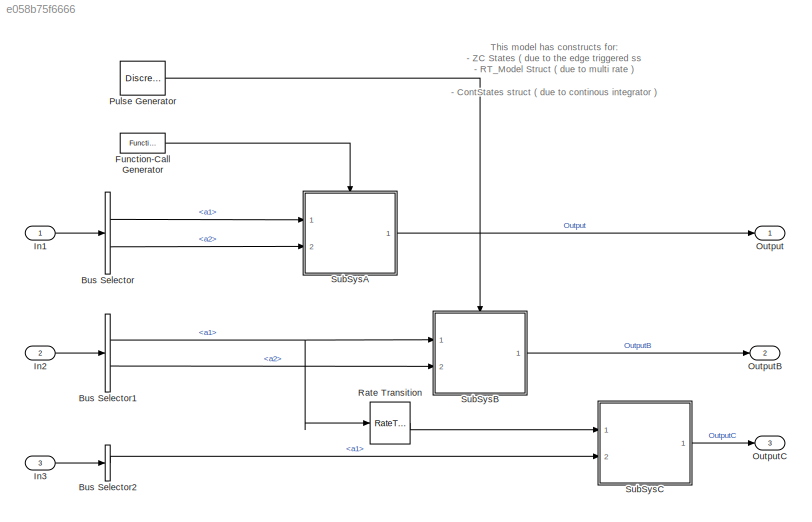
MODEL slx_e058b75f6666
KIND model
CONFIG AbsTol = auto
CONFIG EnableMultiTasking = off
CONFIG FixedStep = .001
CONFIG MaxStep = auto
CONFIG MinStep = auto
CONFIG PreLoadFcn = load 'test_data.mat'
CONFIG RelTol = 1e-3
CONFIG SampleTimeConstraint = Unconstrained
CONFIG Solver = ode4
CONFIG SolverName = ode4
CONFIG StartTime = 0.0
CONFIG StopTime = 10.0
BLOCK [BusSelector] Bus Selector
  OutputAsBus = off
  OutputSignals = a1,a2
  Ports = [1, 2]
BLOCK [BusSelector] Bus Selector1
  OutputAsBus = off
  OutputSignals = a1,a2
  Ports = [1, 2]
BLOCK [BusSelector] Bus Selector2
  OutputAsBus = off
  OutputSignals = a1
  Ports = [1, 1]
BLOCK [Reference] Function-Call Generator  REF=simulink/Ports &
Subsystems/Function-Call
Generator
  Ports = [0, 1]
  SourceBlock = simulink/Ports &\nSubsystems/Function-Call\nGenerator
  SourceProductBaseCode = SL
  SourceProductName = Simulink
  SourceType = Function-Call Generator
BLOCK [Inport] In1
  BusOutputAsStruct = on
  IconDisplay = Port number
  OutDataTypeStr = Bus: InBus_msg
BLOCK [Inport] In2
  BusOutputAsStruct = on
  IconDisplay = Port number
  OutDataTypeStr = Bus: env_cmd_msg
  Port = 2
BLOCK [Inport] In3
  BusOutputAsStruct = on
  IconDisplay = Port number
  OutDataTypeStr = Bus: InBus_msg
  Port = 3
  SampleTime = .1
BLOCK [Outport] Output
  IconDisplay = Port number
BLOCK [Outport] OutputB
  IconDisplay = Port number
  Port = 2
BLOCK [Outport] OutputC
  IconDisplay = Port number
  Port = 3
BLOCK [DiscretePulseGenerator] Pulse Generator
  Ports = [0, 1]
  PulseType = Time based
  PulseWidth = 50
BLOCK [RateTransition] Rate Transition
  OutPortSampleTime = .1
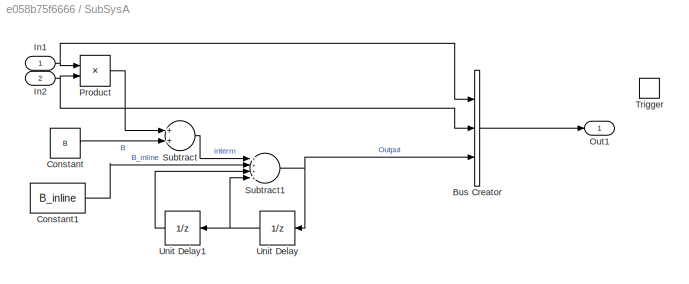
BLOCK [SubSystem] SubSysA
  Ports = [2, 1, 0, 1]
  RTWFcnNameOpts = Use subsystem name
  RTWSystemCode = Reusable function
  RequestExecContextInheritance = off
BLOCK [BusCreator] SubSysA/Bus Creator
  DisplayOption = bar
  InheritFromInputs = on
  Inputs = 3
  NonVirtualBus = on
  OutDataTypeStr = Bus: OutBus_msg
  Ports = [3, 1]
BLOCK [Constant] SubSysA/Constant
  Value = B
BLOCK [Constant] SubSysA/Constant1
  Value = B_inline
BLOCK [Inport] SubSysA/In1
  IconDisplay = Port number
BLOCK [Inport] SubSysA/In2
  IconDisplay = Port number
  Port = 2
BLOCK [Outport] SubSysA/Out1
  IconDisplay = Port number
BLOCK [Product] SubSysA/Product
  InputSameDT = off
  OutDataTypeStr = Inherit: Inherit via internal rule
  Ports = [2, 1]
  SaturateOnIntegerOverflow = off
BLOCK [Sum] SubSysA/Subtract
  InputSameDT = off
  OutDataTypeStr = Inherit: Inherit via internal rule
  Ports = [2, 1]
  SaturateOnIntegerOverflow = off
BLOCK [Sum] SubSysA/Subtract1
  InputSameDT = off
  Inputs = ++++
  OutDataTypeStr = Inherit: Inherit via internal rule
  Ports = [4, 1]
  SaturateOnIntegerOverflow = off
BLOCK [TriggerPort] SubSysA/Trigger
  Ports = []
  StatesWhenEnabling = held
  TriggerType = function-call
  VariantControl = (inherit)
BLOCK [UnitDelay] SubSysA/Unit Delay
  SampleTime = -1
  StateName = UnitDelayState
BLOCK [UnitDelay] SubSysA/Unit Delay1
  SampleTime = -1
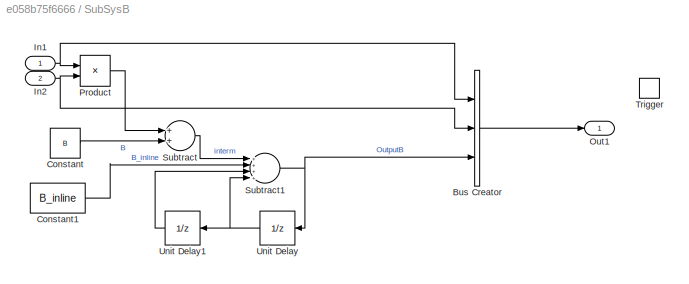
BLOCK [SubSystem] SubSysB
  Ports = [2, 1, 0, 1]
  RTWFcnNameOpts = Use subsystem name
  RTWSystemCode = Reusable function
  RequestExecContextInheritance = off
BLOCK [BusCreator] SubSysB/Bus Creator
  DisplayOption = bar
  InheritFromInputs = on
  Inputs = 3
  NonVirtualBus = on
  OutDataTypeStr = Bus: gnc_cmd_msg
  Ports = [3, 1]
BLOCK [Constant] SubSysB/Constant
  Value = B
BLOCK [Constant] SubSysB/Constant1
  Value = B_inline
BLOCK [Inport] SubSysB/In1
  IconDisplay = Port number
BLOCK [Inport] SubSysB/In2
  IconDisplay = Port number
  Port = 2
BLOCK [Outport] SubSysB/Out1
  IconDisplay = Port number
BLOCK [Product] SubSysB/Product
  InputSameDT = off
  OutDataTypeStr = Inherit: Inherit via internal rule
  Ports = [2, 1]
  SaturateOnIntegerOverflow = off
BLOCK [Sum] SubSysB/Subtract
  InputSameDT = off
  OutDataTypeStr = Inherit: Inherit via internal rule
  Ports = [2, 1]
  SaturateOnIntegerOverflow = off
BLOCK [Sum] SubSysB/Subtract1
  InputSameDT = off
  Inputs = ++++
  OutDataTypeStr = Inherit: Inherit via internal rule
  Ports = [4, 1]
  SaturateOnIntegerOverflow = off
BLOCK [TriggerPort] SubSysB/Trigger
  Ports = []
  StatesWhenEnabling = held
  VariantControl = (inherit)
BLOCK [UnitDelay] SubSysB/Unit Delay
  SampleTime = -1
  StateName = UnitDelayState
BLOCK [UnitDelay] SubSysB/Unit Delay1
  SampleTime = -1
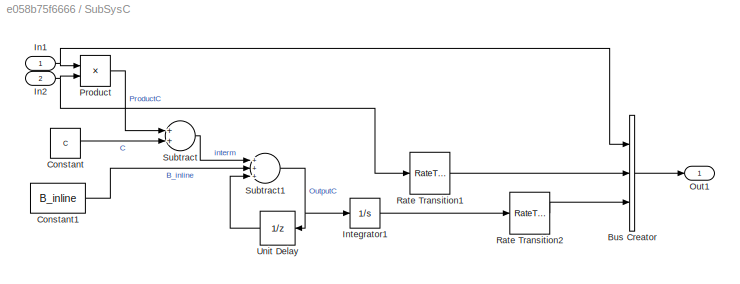
BLOCK [SubSystem] SubSysC
  Ports = [2, 1]
  RTWFcnNameOpts = Use subsystem name
  RTWFileNameOpts = Use subsystem name
  RTWSystemCode = Nonreusable function
  RequestExecContextInheritance = off
BLOCK [BusCreator] SubSysC/Bus Creator
  DisplayOption = bar
  InheritFromInputs = on
  Inputs = 3
  NonVirtualBus = on
  OutDataTypeStr = Bus: gnc_cmd_msg
  Ports = [3, 1]
BLOCK [Constant] SubSysC/Constant
  Value = C
BLOCK [Constant] SubSysC/Constant1
  Value = B_inline
BLOCK [Inport] SubSysC/In1
  IconDisplay = Signal name
BLOCK [Inport] SubSysC/In2
  IconDisplay = Port number
  Port = 2
BLOCK [Integrator] SubSysC/Integrator1
  Ports = [1, 1]
BLOCK [Outport] SubSysC/Out1
  IconDisplay = Port number
BLOCK [Product] SubSysC/Product
  InputSameDT = off
  OutDataTypeStr = Inherit: Inherit via internal rule
  Ports = [2, 1]
  SaturateOnIntegerOverflow = off
BLOCK [RateTransition] SubSysC/Rate Transition1
BLOCK [RateTransition] SubSysC/Rate Transition2
BLOCK [Sum] SubSysC/Subtract
  InputSameDT = off
  OutDataTypeStr = Inherit: Inherit via internal rule
  Ports = [2, 1]
  SaturateOnIntegerOverflow = off
BLOCK [Sum] SubSysC/Subtract1
  InputSameDT = off
  Inputs = +++
  OutDataTypeStr = Inherit: Inherit via internal rule
  Ports = [3, 1]
  SaturateOnIntegerOverflow = off
BLOCK [UnitDelay] SubSysC/Unit Delay
  SampleTime = -1
  StateName = UnitDelayStateC
ANNOTATION (root): This model has constructs for: - ZC States ( due to the edge triggered ss - RT_Model Struct ( due to multi rate ) - ContStates struct ( due to continous integrator )
NET Bus Selector1:1 -> Rate Transition:1, SubSysB:1
LINE Bus Selector1:2 -> SubSysB:2
LINE Bus Selector2:1 -> SubSysC:2
LINE Bus Selector:1 -> SubSysA:1
LINE Bus Selector:2 -> SubSysA:2
LINE Function-Call Generator:1 -> SubSysA:trigger
LINE In1:1 -> Bus Selector:1
LINE In2:1 -> Bus Selector1:1
LINE In3:1 -> Bus Selector2:1
LINE Pulse Generator:1 -> SubSysB:trigger
LINE Rate Transition:1 -> SubSysC:1
LINE SubSysA/Bus Creator:1 -> SubSysA/Out1:1
LINE SubSysA/Constant1:1 -> SubSysA/Subtract1:2
LINE SubSysA/Constant:1 -> SubSysA/Subtract:2
NET SubSysA/In1:1 -> SubSysA/Bus Creator:1, SubSysA/Product:1
NET SubSysA/In2:1 -> SubSysA/Bus Creator:2, SubSysA/Product:2
LINE SubSysA/Product:1 -> SubSysA/Subtract:1
NET SubSysA/Subtract1:1 -> SubSysA/Bus Creator:3, SubSysA/Unit Delay:1
LINE SubSysA/Subtract:1 -> SubSysA/Subtract1:1
LINE SubSysA/Unit Delay1:1 -> SubSysA/Subtract1:3
NET SubSysA/Unit Delay:1 -> SubSysA/Subtract1:4, SubSysA/Unit Delay1:1
LINE SubSysA:1 -> Output:1
LINE SubSysB/Bus Creator:1 -> SubSysB/Out1:1
LINE SubSysB/Constant1:1 -> SubSysB/Subtract1:2
LINE SubSysB/Constant:1 -> SubSysB/Subtract:2
NET SubSysB/In1:1 -> SubSysB/Bus Creator:1, SubSysB/Product:1
NET SubSysB/In2:1 -> SubSysB/Bus Creator:2, SubSysB/Product:2
LINE SubSysB/Product:1 -> SubSysB/Subtract:1
NET SubSysB/Subtract1:1 -> SubSysB/Bus Creator:3, SubSysB/Unit Delay:1
LINE SubSysB/Subtract:1 -> SubSysB/Subtract1:1
LINE SubSysB/Unit Delay1:1 -> SubSysB/Subtract1:3
NET SubSysB/Unit Delay:1 -> SubSysB/Subtract1:4, SubSysB/Unit Delay1:1
LINE SubSysB:1 -> OutputB:1
LINE SubSysC/Bus Creator:1 -> SubSysC/Out1:1
LINE SubSysC/Constant1:1 -> SubSysC/Subtract1:2
LINE SubSysC/Constant:1 -> SubSysC/Subtract:2
NET SubSysC/In1:1 -> SubSysC/Bus Creator:1, SubSysC/Product:1
NET SubSysC/In2:1 -> SubSysC/Product:2, SubSysC/Rate Transition1:1
LINE SubSysC/Integrator1:1 -> SubSysC/Rate Transition2:1
LINE SubSysC/Product:1 -> SubSysC/Subtract:1
LINE SubSysC/Rate Transition1:1 -> SubSysC/Bus Creator:2
LINE SubSysC/Rate Transition2:1 -> SubSysC/Bus Creator:3
NET SubSysC/Subtract1:1 -> SubSysC/Integrator1:1, SubSysC/Unit Delay:1
LINE SubSysC/Subtract:1 -> SubSysC/Subtract1:1
LINE SubSysC/Unit Delay:1 -> SubSysC/Subtract1:3
LINE SubSysC:1 -> OutputC:1
note: NET lines group one-source signal fan-out (src -> all destinations, sorted); 1:1 wires keep LINE
